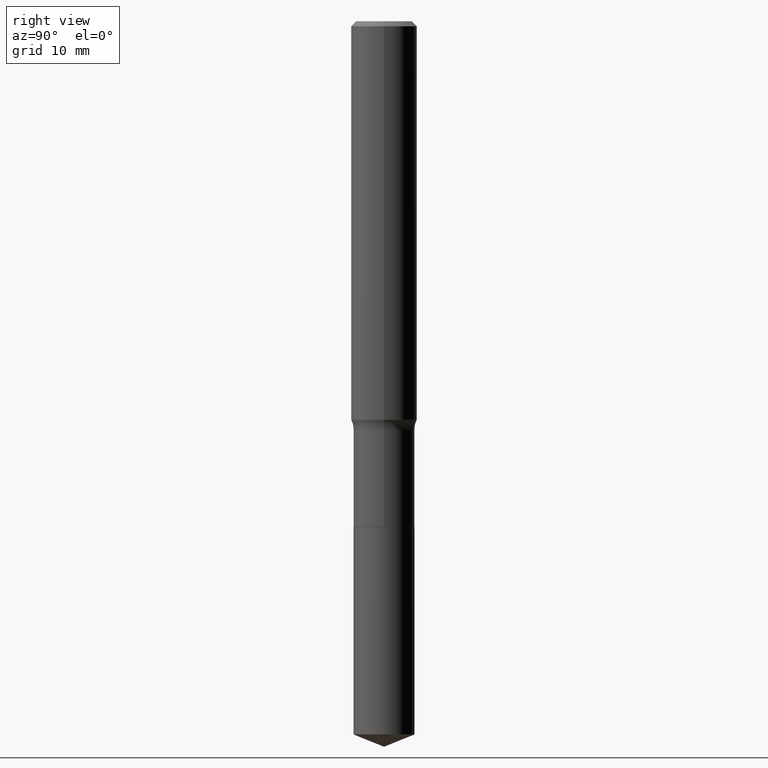
[diagram: clean part render]
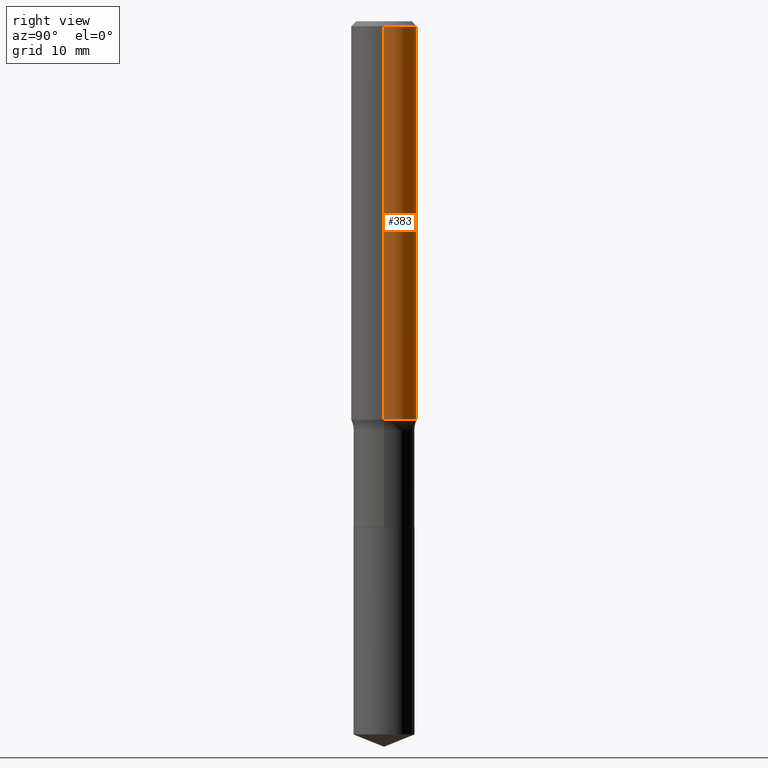
[diagram: same view with one face highlighted and labeled with its STEP entity id]
A machine part, right view. The second image highlights one B-rep face of the part: STEP entity #383.
In plain terms, the highlighted cylindrical surface (edge-blend (fillet) strip) has radius 2.9997 mm, axis along (-0, 0, 1).
Its self-contained STEP definition (entity closure, byte-faithful):
#14 = VERTEX_POINT ( 'NONE', #22 ) ;
#22 = CARTESIAN_POINT ( 'NONE',  ( -0.1181000000000001909, -4.144595831574545363E-15, -1.427401815688501108 ) ) ;
#30 = LINE ( 'NONE', #373, #107 ) ;
#34 = DIRECTION ( 'NONE',  ( -2.445468806185136877E-29, 3.491481338843145188E-15, 1.000000000000000000 ) ) ;
#36 = ORIENTED_EDGE ( 'NONE', *, *, #425, .T. ) ;
#37 = ORIENTED_EDGE ( 'NONE', *, *, #460, .F. ) ;
#58 = VERTEX_POINT ( 'NONE', #387 ) ;
#72 = DIRECTION ( 'NONE',  ( -2.445468806185136877E-29, 3.491481338843145188E-15, 1.000000000000000000 ) ) ;
#73 = AXIS2_PLACEMENT_3D ( 'NONE', #226, #308, #414 ) ;
#74 = CARTESIAN_POINT ( 'NONE',  ( 0.1181000000000000799, -8.246878922347486570E-16, 5.758764772215004644E-30 ) ) ;
#80 = CIRCLE ( 'NONE', #338, 0.1180999999999999966 ) ;
#81 = ORIENTED_EDGE ( 'NONE', *, *, #391, .T. ) ;
#107 = VECTOR ( 'NONE', #72, 39.37007874015748143 ) ;
#112 = LINE ( 'NONE', #74, #399 ) ;
#117 = CARTESIAN_POINT ( 'NONE',  ( 3.490666614158254888E-29, -4.983746802507225138E-15, -1.427401815688501108 ) ) ;
#132 = ORIENTED_EDGE ( 'NONE', *, *, #307, .F. ) ;
#145 = CIRCLE ( 'NONE', #313, 0.1181000000000001632 ) ;
#153 = DIRECTION ( 'NONE',  ( 1.000000000000000000, -6.982962677686270655E-15, 0.000000000000000000 ) ) ;
#209 = CARTESIAN_POINT ( 'NONE',  ( 4.332147990156996744E-31, -6.185159191760670395E-17, -0.01771500000000010913 ) ) ;
#212 = CARTESIAN_POINT ( 'NONE',  ( -0.1180999999999999966, -1.683648226279736288E-15, -0.01771500000000010913 ) ) ;
#226 = CARTESIAN_POINT ( 'NONE',  ( 0.000000000000000000, 0.000000000000000000, 0.000000000000000000 ) ) ;
#307 = EDGE_CURVE ( 'NONE', #58, #433, #112, .T. ) ;
#308 = DIRECTION ( 'NONE',  ( -2.445468806185136597E-29, 3.491481338843145583E-15, 1.000000000000000000 ) ) ;
#313 = AXIS2_PLACEMENT_3D ( 'NONE', #117, #381, #153 ) ;
#338 = AXIS2_PLACEMENT_3D ( 'NONE', #209, #360, #463 ) ;
#343 = EDGE_LOOP ( 'NONE', ( #81, #36, #37, #132 ) ) ;
#360 = DIRECTION ( 'NONE',  ( -2.445468806185136597E-29, 3.491481338843145583E-15, 1.000000000000000000 ) ) ;
#364 = CARTESIAN_POINT ( 'NONE',  ( 0.1180999999999999966, -8.865394841523547570E-16, -0.01771500000000010913 ) ) ;
#373 = CARTESIAN_POINT ( 'NONE',  ( -0.1181000000000000799, 8.391509709326788873E-16, -5.809262341591047988E-30 ) ) ;
#381 = DIRECTION ( 'NONE',  ( -2.445468806185136597E-29, 3.491481338843145583E-15, 1.000000000000000000 ) ) ;
#383 = ADVANCED_FACE ( 'NONE', ( #415 ), #422, .T. ) ;
#387 = CARTESIAN_POINT ( 'NONE',  ( 0.1181000000000001909, -5.808434694741974978E-15, -1.427401815688501108 ) ) ;
#391 = EDGE_CURVE ( 'NONE', #58, #14, #145, .T. ) ;
#399 = VECTOR ( 'NONE', #34, 39.37007874015748143 ) ;
#414 = DIRECTION ( 'NONE',  ( 1.000000000000000000, -6.982962677686266711E-15, 4.876176775795936353E-29 ) ) ;
#415 = FACE_OUTER_BOUND ( 'NONE', #343, .T. ) ;
#422 = CYLINDRICAL_SURFACE ( 'NONE', #73, 0.1181000000000000799 ) ;
#425 = EDGE_CURVE ( 'NONE', #14, #491, #30, .T. ) ;
#433 = VERTEX_POINT ( 'NONE', #364 ) ;
#460 = EDGE_CURVE ( 'NONE', #433, #491, #80, .T. ) ;
#463 = DIRECTION ( 'NONE',  ( 1.000000000000000000, -6.982962677686266711E-15, 0.000000000000000000 ) ) ;
#491 = VERTEX_POINT ( 'NONE', #212 ) ;